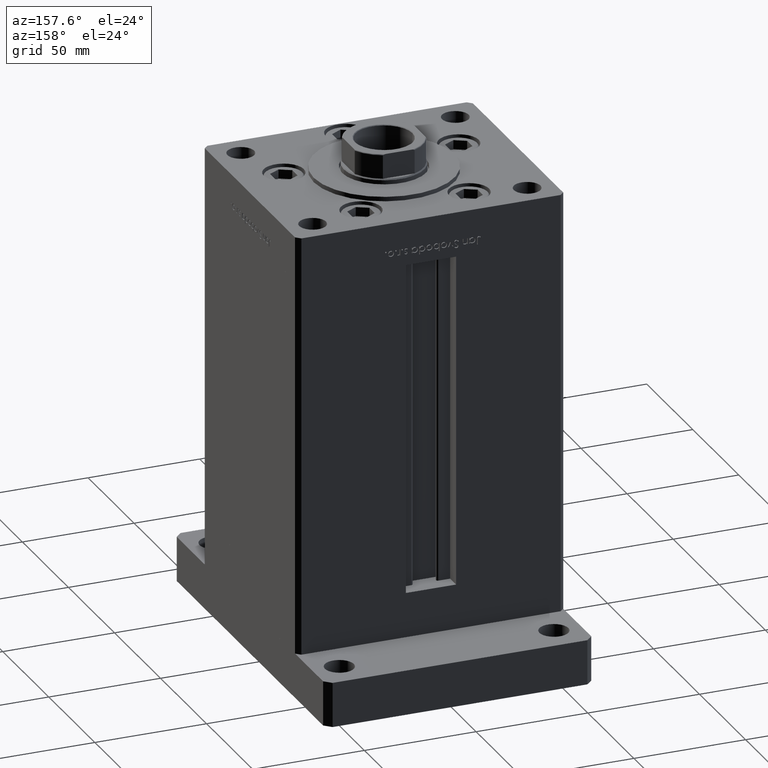
[diagram: clean part render]
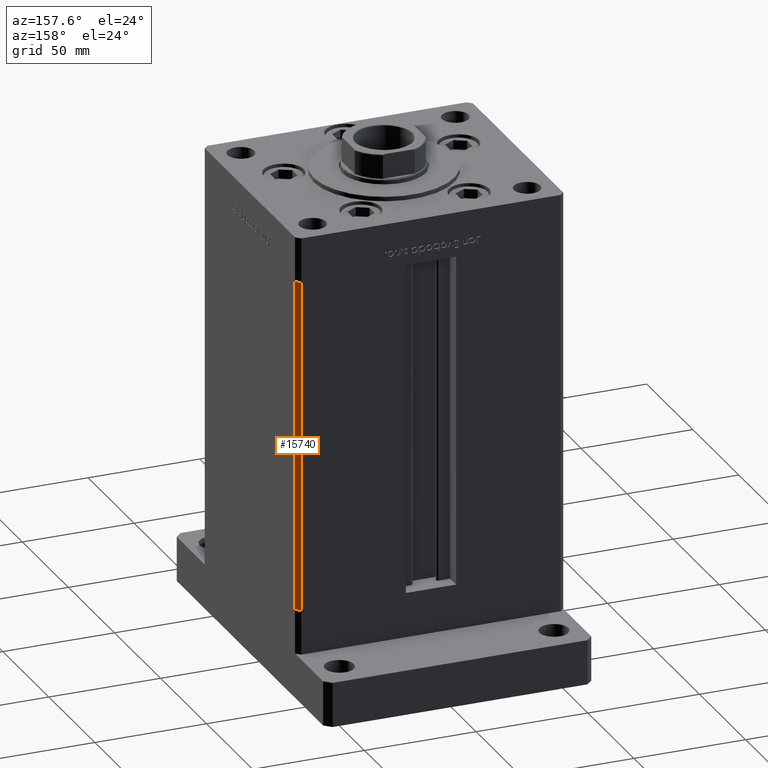
[diagram: same view with one face highlighted and labeled with its STEP entity id]
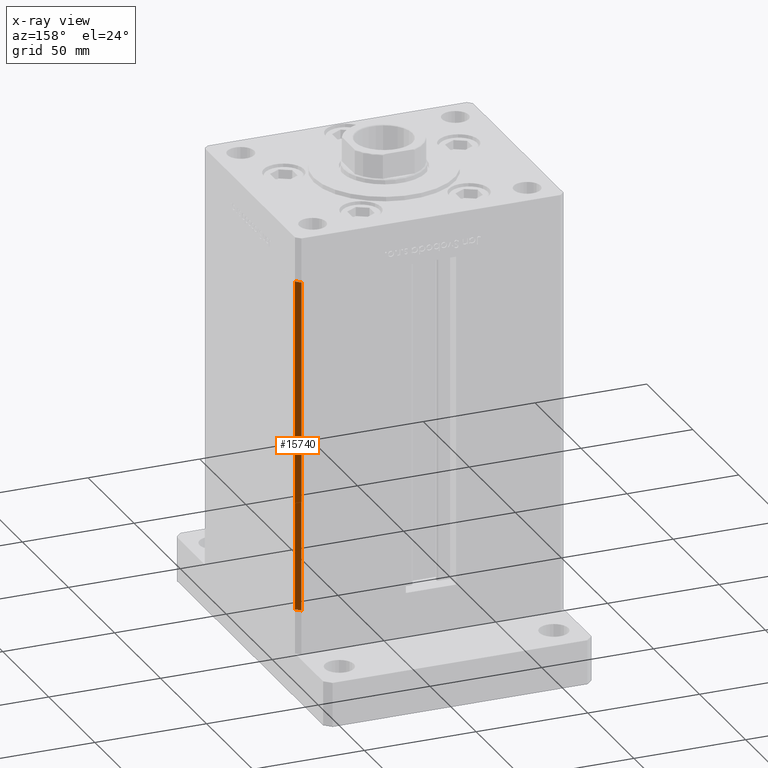
[diagram: x-ray of the same camera — body ghosted, the highlighted face saturated]
A machine part, auxiliary view. The second image highlights one B-rep face of the part: STEP entity #15740.
The next image is the same camera in x-ray: the body ghosted, the highlighted face saturated — about 0% of this face is hidden behind the body in this view.
In plain terms, the highlighted planar face has unit normal (0.7071, 0.7071, 0).
Its self-contained STEP definition (entity closure, byte-faithful):
#2286 = LINE ( 'NONE', #47853, #31030 ) ;
#6888 = DIRECTION ( 'NONE',  ( 0.7071067811865500152, -0.7071067811865451302, 0.000000000000000000 ) ) ;
#8202 = CARTESIAN_POINT ( 'NONE',  ( 57.99999999999999289, 51.00000000000000711, 0.000000000000000000 ) ) ;
#8476 = DIRECTION ( 'NONE',  ( 0.7071067811865500152, -0.7071067811865451302, 0.000000000000000000 ) ) ;
#10439 = DIRECTION ( 'NONE',  ( -0.000000000000000000, -0.000000000000000000, -1.000000000000000000 ) ) ;
#11083 = VERTEX_POINT ( 'NONE', #20269 ) ;
#11134 = FACE_OUTER_BOUND ( 'NONE', #45798, .T. ) ;
#11494 = LINE ( 'NONE', #15830, #21390 ) ;
#12542 = VECTOR ( 'NONE', #8476, 1000.000000000000114 ) ;
#15195 = PLANE ( 'NONE',  #41356 ) ;
#15537 = EDGE_CURVE ( 'NONE', #38667, #11083, #11494, .T. ) ;
#15740 = ADVANCED_FACE ( 'NONE', ( #11134 ), #15195, .T. ) ;
#15830 = CARTESIAN_POINT ( 'NONE',  ( 57.99999999999999289, 51.00000000000000711, 0.000000000000000000 ) ) ;
#20269 = CARTESIAN_POINT ( 'NONE',  ( 60.00000000000001421, 49.00000000000000000, 0.000000000000000000 ) ) ;
#20439 = EDGE_CURVE ( 'NONE', #28307, #11083, #2286, .T. ) ;
#21390 = VECTOR ( 'NONE', #6888, 1000.000000000000114 ) ;
#26908 = LINE ( 'NONE', #43477, #51511 ) ;
#28307 = VERTEX_POINT ( 'NONE', #31952 ) ;
#28971 = CARTESIAN_POINT ( 'NONE',  ( 57.99999999999999289, 51.00000000000000711, 148.5000000000000000 ) ) ;
#29160 = ORIENTED_EDGE ( 'NONE', *, *, #15537, .F. ) ;
#30772 = ORIENTED_EDGE ( 'NONE', *, *, #41410, .T. ) ;
#31030 = VECTOR ( 'NONE', #10439, 1000.000000000000000 ) ;
#31952 = CARTESIAN_POINT ( 'NONE',  ( 60.00000000000001421, 49.00000000000000000, 148.5000000000000000 ) ) ;
#33660 = LINE ( 'NONE', #41529, #12542 ) ;
#34004 = ORIENTED_EDGE ( 'NONE', *, *, #20439, .T. ) ;
#36047 = DIRECTION ( 'NONE',  ( -0.7071067811865499042, 0.7071067811865451302, 0.000000000000000000 ) ) ;
#37765 = VERTEX_POINT ( 'NONE', #28971 ) ;
#38667 = VERTEX_POINT ( 'NONE', #8202 ) ;
#40919 = DIRECTION ( 'NONE',  ( 0.7071067811865451302, 0.7071067811865499042, -0.000000000000000000 ) ) ;
#41356 = AXIS2_PLACEMENT_3D ( 'NONE', #44739, #40919, #36047 ) ;
#41410 = EDGE_CURVE ( 'NONE', #37765, #28307, #33660, .T. ) ;
#41529 = CARTESIAN_POINT ( 'NONE',  ( 57.99999999999999289, 51.00000000000000711, 148.5000000000000000 ) ) ;
#43477 = CARTESIAN_POINT ( 'NONE',  ( 57.99999999999999289, 51.00000000000000711, 148.5000000000000000 ) ) ;
#44739 = CARTESIAN_POINT ( 'NONE',  ( 57.99999999999999289, 51.00000000000000711, 148.5000000000000000 ) ) ;
#45798 = EDGE_LOOP ( 'NONE', ( #29160, #53572, #30772, #34004 ) ) ;
#47853 = CARTESIAN_POINT ( 'NONE',  ( 60.00000000000001421, 49.00000000000000000, 148.5000000000000000 ) ) ;
#51511 = VECTOR ( 'NONE', #52436, 1000.000000000000000 ) ;
#51664 = EDGE_CURVE ( 'NONE', #37765, #38667, #26908, .T. ) ;
#52436 = DIRECTION ( 'NONE',  ( -0.000000000000000000, -0.000000000000000000, -1.000000000000000000 ) ) ;
#53572 = ORIENTED_EDGE ( 'NONE', *, *, #51664, .F. ) ;